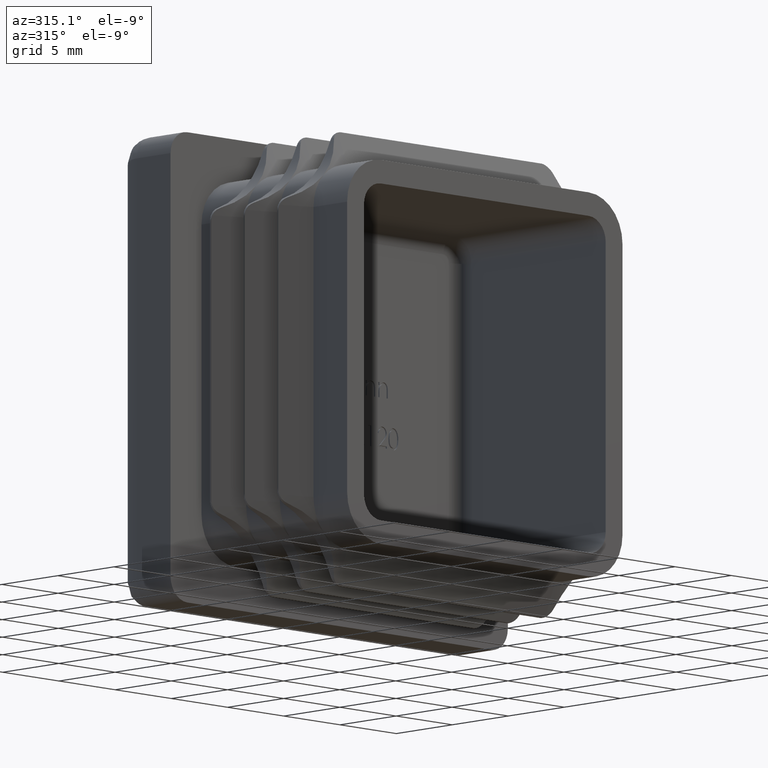
[diagram: clean part render]
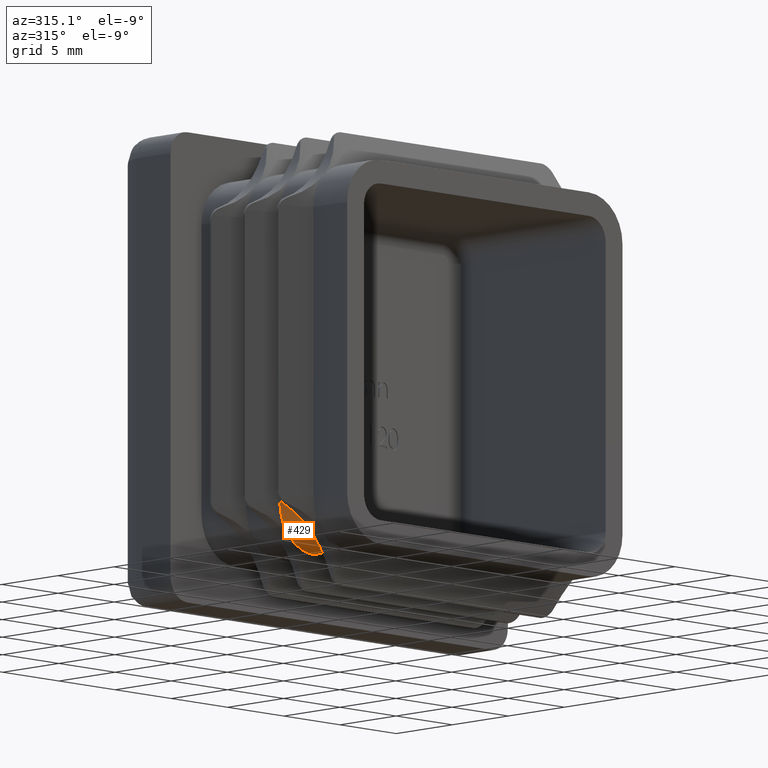
[diagram: same view with one face highlighted and labeled with its STEP entity id]
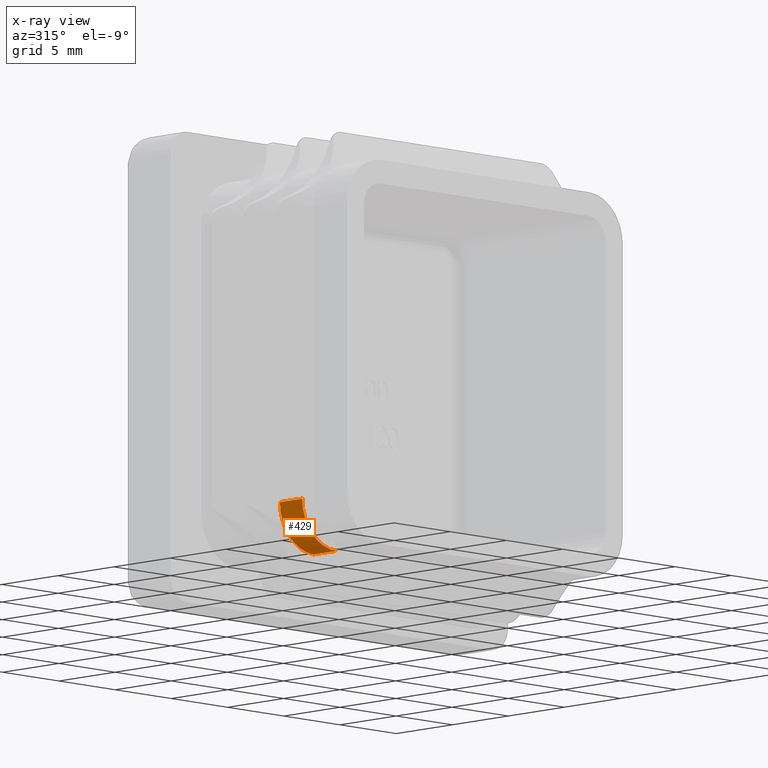
[diagram: x-ray of the same camera — body ghosted, the highlighted face saturated]
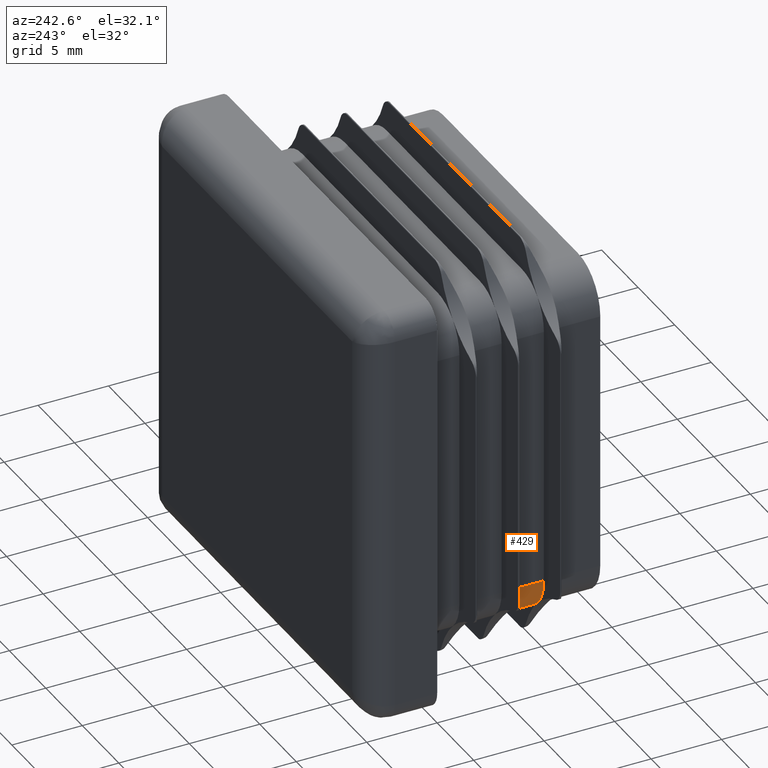
[diagram: same view with one face highlighted and labeled with its STEP entity id]
A machine part, auxiliary view. The second image highlights one B-rep face of the part: STEP entity #429.
The next image is the same camera in x-ray: the body ghosted, the highlighted face saturated — about 0% of this face is hidden behind the body in this view.
A second angle (auxiliary view) of the same face is appended — the face is thin or edge-on in the first view.
In plain terms, the highlighted cylindrical surface (partial cylindrical patch) has radius 3 mm, axis along (-0, 1, -0).
Its self-contained STEP definition (entity closure, byte-faithful):
#50 = AXIS2_PLACEMENT_3D ( 'NONE', #14256, #1694, #12795 ) ;
#425 = CIRCLE ( 'NONE', #2241, 3.000000000000067057 ) ;
#429 = ADVANCED_FACE ( 'NONE', ( #4403 ), #15018, .T. ) ;
#476 = CIRCLE ( 'NONE', #5880, 3.000000000000035527 ) ;
#1375 = DIRECTION ( 'NONE',  ( 0.000000000000000000, 1.000000000000000000, 0.000000000000000000 ) ) ;
#1512 = DIRECTION ( 'NONE',  ( 0.000000000000000000, 0.000000000000000000, -1.000000000000000000 ) ) ;
#1694 = DIRECTION ( 'NONE',  ( 0.000000000000000000, 1.000000000000000000, 0.000000000000000000 ) ) ;
#2241 = AXIS2_PLACEMENT_3D ( 'NONE', #17376, #7908, #20518 ) ;
#2451 = VERTEX_POINT ( 'NONE', #13818 ) ;
#3193 = VECTOR ( 'NONE', #16200, 1000.000000000000000 ) ;
#4308 = ORIENTED_EDGE ( 'NONE', *, *, #19743, .F. ) ;
#4403 = FACE_OUTER_BOUND ( 'NONE', #17897, .T. ) ;
#5879 = CARTESIAN_POINT ( 'NONE',  ( -9.250000000000001776, -7.000000000000013323, -12.24999999999999645 ) ) ;
#5880 = AXIS2_PLACEMENT_3D ( 'NONE', #17062, #1375, #7581 ) ;
#5949 = CARTESIAN_POINT ( 'NONE',  ( -11.37132034355966148, -9.000000000000001776, -11.37132034355971300 ) ) ;
#6441 = ORIENTED_EDGE ( 'NONE', *, *, #12715, .F. ) ;
#6624 = EDGE_CURVE ( 'NONE', #7729, #10287, #425, .T. ) ;
#6788 = DIRECTION ( 'NONE',  ( -0.000000000000000000, 1.000000000000000000, -0.000000000000000000 ) ) ;
#7581 = DIRECTION ( 'NONE',  ( 0.000000000000000000, 0.000000000000000000, -1.000000000000000000 ) ) ;
#7729 = VERTEX_POINT ( 'NONE', #13169 ) ;
#7908 = DIRECTION ( 'NONE',  ( 0.000000000000000000, 1.000000000000000000, 0.000000000000000000 ) ) ;
#8506 = CARTESIAN_POINT ( 'NONE',  ( -11.37132034355960641, -7.000000000000017764, -11.37132034355965970 ) ) ;
#10287 = VERTEX_POINT ( 'NONE', #5949 ) ;
#10300 = LINE ( 'NONE', #13336, #12745 ) ;
#10314 = VERTEX_POINT ( 'NONE', #5879 ) ;
#11215 = CARTESIAN_POINT ( 'NONE',  ( -9.249999999999998224, -7.000000000000000000, -9.249999999999994671 ) ) ;
#11233 = CIRCLE ( 'NONE', #18132, 3.000000000000035527 ) ;
#11436 = AXIS2_PLACEMENT_3D ( 'NONE', #15542, #18722, #17148 ) ;
#12715 = EDGE_CURVE ( 'NONE', #19110, #17954, #476, .T. ) ;
#12722 = CIRCLE ( 'NONE', #50, 3.000000000000067057 ) ;
#12745 = VECTOR ( 'NONE', #6788, 1000.000000000000000 ) ;
#12795 = DIRECTION ( 'NONE',  ( 0.000000000000000000, 0.000000000000000000, -1.000000000000000000 ) ) ;
#13169 = CARTESIAN_POINT ( 'NONE',  ( -9.250000000000001776, -9.000000000000003553, -12.24999999999999645 ) ) ;
#13336 = CARTESIAN_POINT ( 'NONE',  ( -12.25000000000000711, -13.00000000000000000, -9.249999999999994671 ) ) ;
#13790 = CARTESIAN_POINT ( 'NONE',  ( -12.25000000000000711, -7.000000000000015099, -9.249999999999994671 ) ) ;
#13818 = CARTESIAN_POINT ( 'NONE',  ( -12.25000000000000711, -9.000000000000005329, -9.249999999999994671 ) ) ;
#14256 = CARTESIAN_POINT ( 'NONE',  ( -9.249999999999998224, -9.000000000000001776, -9.249999999999994671 ) ) ;
#14653 = ORIENTED_EDGE ( 'NONE', *, *, #6624, .T. ) ;
#15018 = CYLINDRICAL_SURFACE ( 'NONE', #11436, 3.000000000000006217 ) ;
#15382 = EDGE_CURVE ( 'NONE', #7729, #10314, #18054, .T. ) ;
#15542 = CARTESIAN_POINT ( 'NONE',  ( -9.250000000000001776, -13.00000000000000000, -9.249999999999994671 ) ) ;
#16003 = DIRECTION ( 'NONE',  ( 0.000000000000000000, 1.000000000000000000, 0.000000000000000000 ) ) ;
#16158 = ORIENTED_EDGE ( 'NONE', *, *, #15382, .F. ) ;
#16159 = ORIENTED_EDGE ( 'NONE', *, *, #19072, .T. ) ;
#16200 = DIRECTION ( 'NONE',  ( -0.000000000000000000, 1.000000000000000000, -0.000000000000000000 ) ) ;
#17062 = CARTESIAN_POINT ( 'NONE',  ( -9.249999999999998224, -7.000000000000000000, -9.249999999999994671 ) ) ;
#17148 = DIRECTION ( 'NONE',  ( 0.000000000000000000, 0.000000000000000000, 1.000000000000000000 ) ) ;
#17376 = CARTESIAN_POINT ( 'NONE',  ( -9.249999999999998224, -9.000000000000001776, -9.249999999999994671 ) ) ;
#17897 = EDGE_LOOP ( 'NONE', ( #6441, #4308, #16158, #14653, #19537, #16159 ) ) ;
#17954 = VERTEX_POINT ( 'NONE', #13790 ) ;
#18054 = LINE ( 'NONE', #18068, #3193 ) ;
#18068 = CARTESIAN_POINT ( 'NONE',  ( -9.250000000000001776, -13.00000000000000000, -12.24999999999999645 ) ) ;
#18132 = AXIS2_PLACEMENT_3D ( 'NONE', #11215, #16003, #1512 ) ;
#18722 = DIRECTION ( 'NONE',  ( -0.000000000000000000, 1.000000000000000000, -0.000000000000000000 ) ) ;
#19072 = EDGE_CURVE ( 'NONE', #2451, #17954, #10300, .T. ) ;
#19110 = VERTEX_POINT ( 'NONE', #8506 ) ;
#19537 = ORIENTED_EDGE ( 'NONE', *, *, #20288, .T. ) ;
#19743 = EDGE_CURVE ( 'NONE', #10314, #19110, #11233, .T. ) ;
#20288 = EDGE_CURVE ( 'NONE', #10287, #2451, #12722, .T. ) ;
#20518 = DIRECTION ( 'NONE',  ( 0.000000000000000000, 0.000000000000000000, -1.000000000000000000 ) ) ;